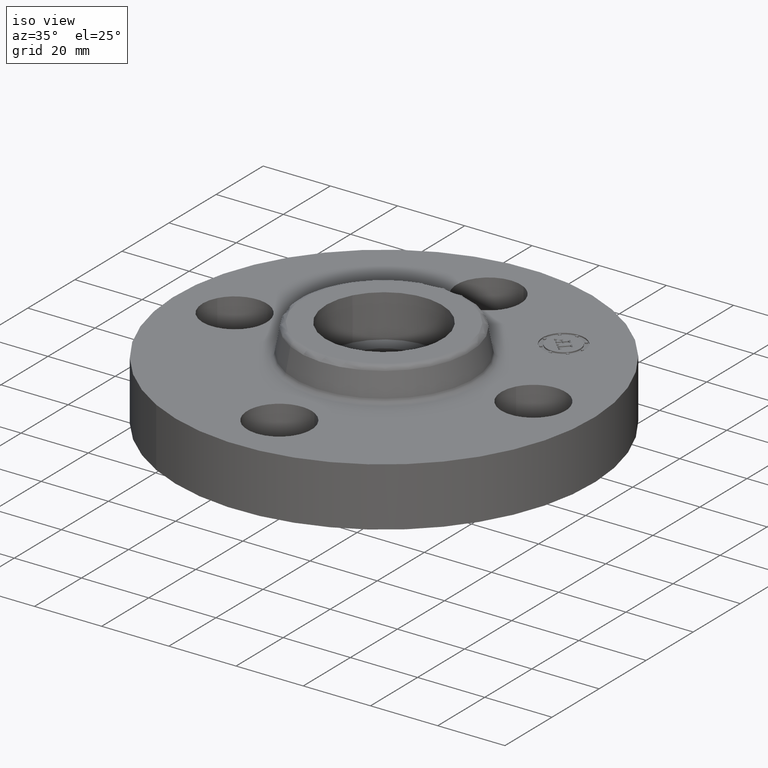
[diagram: clean part render]
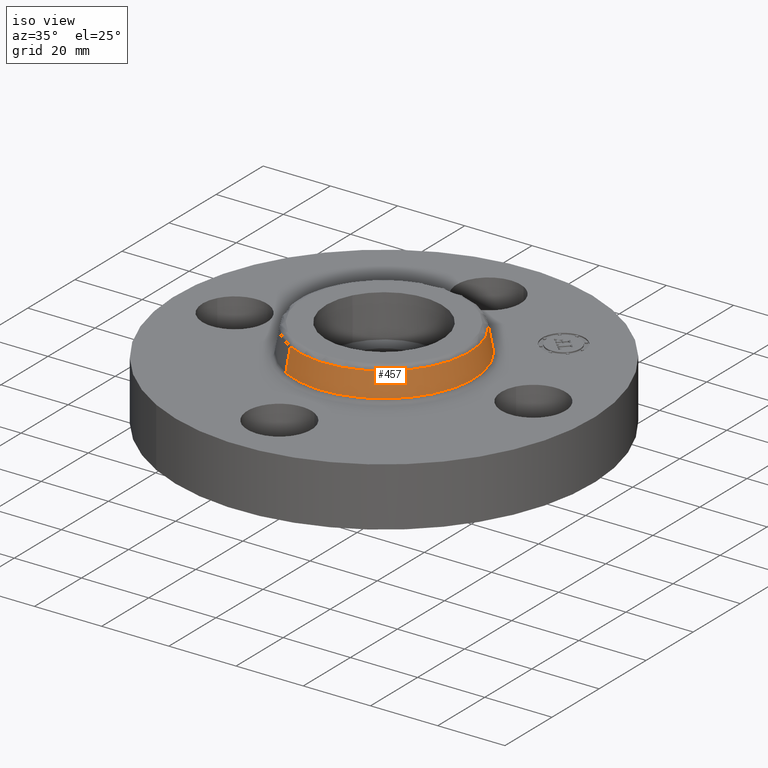
[diagram: same view with one face highlighted and labeled with its STEP entity id]
A machine part, iso view. The second image highlights one B-rep face of the part: STEP entity #457.
In plain terms, the highlighted conical surface has half-angle 10 deg.
Its self-contained STEP definition (entity closure, byte-faithful):
#298=AXIS2_PLACEMENT_3D('Circle Axis2P3D',#296,#297,$) ;
#430=AXIS2_PLACEMENT_3D('Cone Axis2P3D',#427,#428,#429) ;
#434=AXIS2_PLACEMENT_3D('Circle Axis2P3D',#432,#433,$) ;
#296=CARTESIAN_POINT('Axis2P3D Location',(0.,0.,1.01041889066)) ;
#300=CARTESIAN_POINT('Vertex',(0.481104249261,0.880655421136,1.01041889066)) ;
#302=CARTESIAN_POINT('Vertex',(-0.481104249261,-0.880655421136,1.01041889066)) ;
#427=CARTESIAN_POINT('Axis2P3D Location',(0.,0.,1.01041889066)) ;
#432=CARTESIAN_POINT('Axis2P3D Location',(0.,0.,0.739581109343)) ;
#436=CARTESIAN_POINT('Vertex',(0.503999699238,0.922565261201,0.739581109345)) ;
#438=CARTESIAN_POINT('Vertex',(-0.503999699238,-0.922565261201,0.739581109344)) ;
#441=CARTESIAN_POINT('Line Origine',(0.492551974248,0.901610341165,0.874999999999)) ;
#446=CARTESIAN_POINT('Line Origine',(-0.492551974248,-0.901610341165,0.874999999999)) ;
#297=DIRECTION('Axis2P3D Direction',(-0.,0.,-0.0393700787402)) ;
#428=DIRECTION('Axis2P3D Direction',(0.,0.,-0.0393700787402)) ;
#429=DIRECTION('Axis2P3D XDirection',(0.0188750212049,0.0345504945626,0.)) ;
#433=DIRECTION('Axis2P3D Direction',(-0.,0.,-0.0393700787402)) ;
#442=DIRECTION('Vector Direction',(0.00327761303565,0.00599963041827,-0.03877195878)) ;
#447=DIRECTION('Vector Direction',(-0.00327761303565,-0.00599963041827,-0.03877195878)) ;
#443=VECTOR('Line Direction',#442,0.0393700787402) ;
#448=VECTOR('Line Direction',#447,0.0393700787402) ;
#452=ORIENTED_EDGE('',*,*,#440,.F.) ;
#453=ORIENTED_EDGE('',*,*,#445,.T.) ;
#454=ORIENTED_EDGE('',*,*,#304,.T.) ;
#455=ORIENTED_EDGE('',*,*,#450,.F.) ;
#457=ADVANCED_FACE('PartBody',(#456),#431,.T.) ;
#299=CIRCLE('generated circle',#298,1.00350150445) ;
#435=CIRCLE('generated circle',#434,1.05125751269) ;
#431=CONICAL_SURFACE('Cone',#430,1.00350150445,0.174532925199) ;
#304=EDGE_CURVE('',#301,#303,#299,.T.) ;
#440=EDGE_CURVE('',#437,#439,#435,.T.) ;
#445=EDGE_CURVE('',#437,#301,#444,.F.) ;
#450=EDGE_CURVE('',#439,#303,#449,.F.) ;
#451=EDGE_LOOP('',(#452,#453,#454,#455)) ;
#456=FACE_OUTER_BOUND('',#451,.T.) ;
#444=LINE('Line',#441,#443) ;
#449=LINE('Line',#446,#448) ;
#301=VERTEX_POINT('',#300) ;
#303=VERTEX_POINT('',#302) ;
#437=VERTEX_POINT('',#436) ;
#439=VERTEX_POINT('',#438) ;